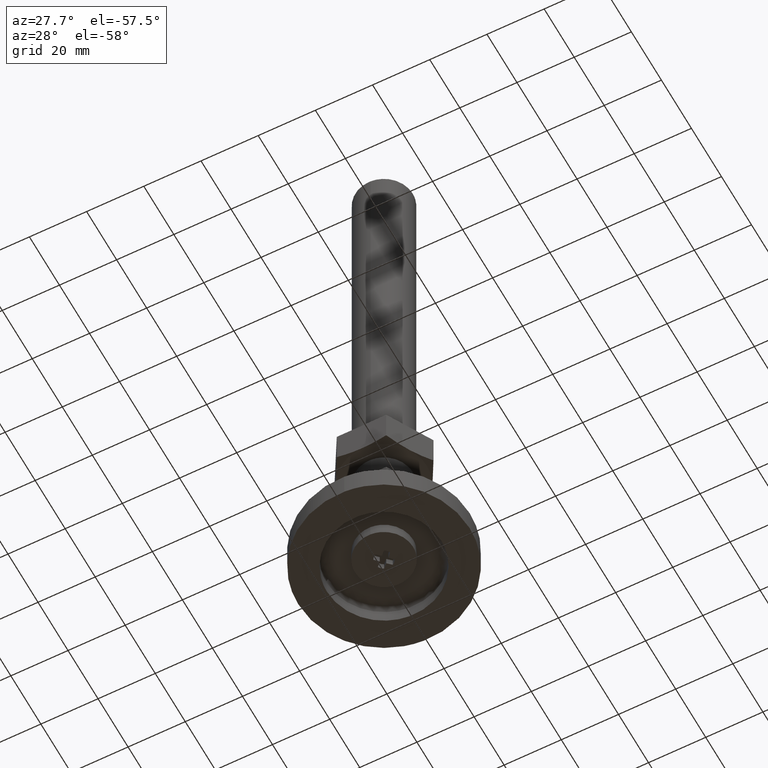
[diagram: clean part render]
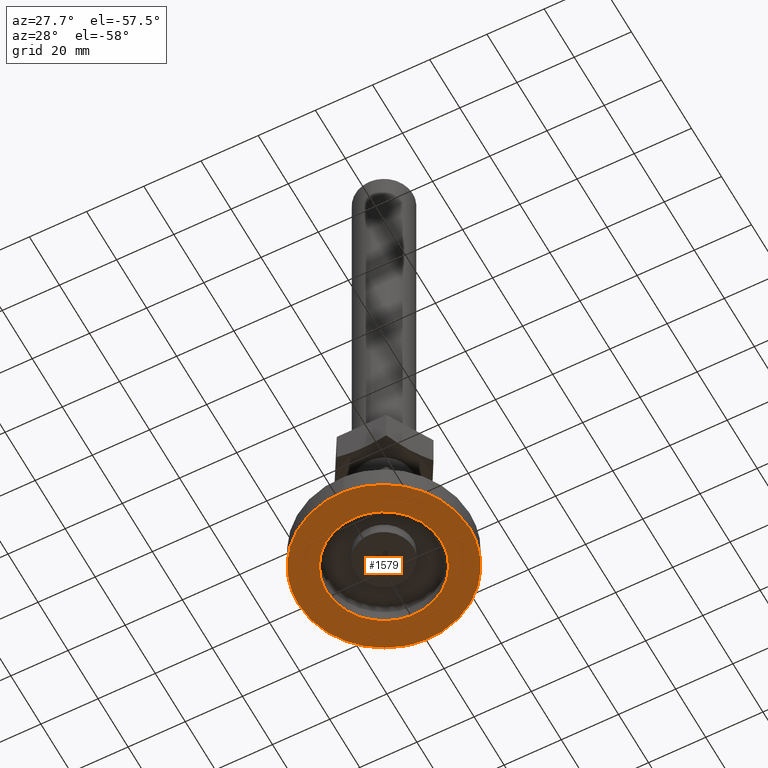
[diagram: same view with one face highlighted and labeled with its STEP entity id]
A machine part, auxiliary view. The second image highlights one B-rep face of the part: STEP entity #1579.
In plain terms, the highlighted face is a freeform B-spline surface patch.
Its self-contained STEP definition (entity closure, byte-faithful):
#1334=CARTESIAN_POINT('',(-1.831456186193486,29.944043952646972,-1.942890E-016));
#1335=VERTEX_POINT('',#1334);
#1343=CARTESIAN_POINT('',(1.831456186193494,-29.944043952646972,-1.942890E-016));
#1344=VERTEX_POINT('',#1343);
#1350=CARTESIAN_POINT('',(30.0,0.0,0.0));
#1351=VERTEX_POINT('',#1350);
#1352=CARTESIAN_POINT('',(30.0,0.0,0.0));
#1353=CARTESIAN_POINT('',(30.0,-28.221182007031295,0.0));
#1354=CARTESIAN_POINT('',(1.831456186193502,-29.944043952646965,0.0));
#1362=(BOUNDED_CURVE()B_SPLINE_CURVE(2,(#1352,#1353,#1354),.UNSPECIFIED.,.F.,.U.)B_SPLINE_CURVE_WITH_KNOTS((3,3),(0.500000000000000,0.739332962241117),.UNSPECIFIED.)CURVE()GEOMETRIC_REPRESENTATION_ITEM()RATIONAL_B_SPLINE_CURVE((1.0,0.719603993284163,0.976072041671377))REPRESENTATION_ITEM(''));
#1363=EDGE_CURVE('',#1351,#1344,#1362,.T.);
#1365=CARTESIAN_POINT('',(-1.831456186193487,29.944043952646972,0.0));
#1366=CARTESIAN_POINT('',(-0.916582899031763,30.000000000000004,0.0));
#1367=CARTESIAN_POINT('',(0.0,30.0,0.0));
#1368=CARTESIAN_POINT('',(29.999999999999993,29.999999999999993,0.0));
#1369=CARTESIAN_POINT('',(30.0,0.0,0.0));
#1377=(BOUNDED_CURVE()B_SPLINE_CURVE(2,(#1365,#1366,#1367,#1368,#1369),.UNSPECIFIED.,.F.,.U.)B_SPLINE_CURVE_WITH_KNOTS((3,2,3),(0.239332962241117,0.250000000000000,0.500000000000000),.UNSPECIFIED.)CURVE()GEOMETRIC_REPRESENTATION_ITEM()RATIONAL_B_SPLINE_CURVE((0.976072041671377,0.987502787902384,1.0,0.707106781186547,1.0))REPRESENTATION_ITEM(''));
#1378=EDGE_CURVE('',#1335,#1351,#1377,.T.);
#1402=CARTESIAN_POINT('',(-30.0,0.0,0.0));
#1403=VERTEX_POINT('',#1402);
#1404=CARTESIAN_POINT('',(-30.0,0.0,0.0));
#1405=CARTESIAN_POINT('',(-30.000000000000004,28.221182007031313,0.0));
#1406=CARTESIAN_POINT('',(-1.831456186193487,29.944043952646972,0.0));
#1414=(BOUNDED_CURVE()B_SPLINE_CURVE(2,(#1404,#1405,#1406),.UNSPECIFIED.,.F.,.U.)B_SPLINE_CURVE_WITH_KNOTS((3,3),(0.0,0.239332962241117),.UNSPECIFIED.)CURVE()GEOMETRIC_REPRESENTATION_ITEM()RATIONAL_B_SPLINE_CURVE((1.0,0.719603993284163,0.976072041671377))REPRESENTATION_ITEM(''));
#1415=EDGE_CURVE('',#1403,#1335,#1414,.T.);
#1417=CARTESIAN_POINT('',(1.831456186193502,-29.944043952646965,0.0));
#1418=CARTESIAN_POINT('',(0.916582899031771,-29.999999999999996,0.0));
#1419=CARTESIAN_POINT('',(0.0,-30.0,0.0));
#1420=CARTESIAN_POINT('',(-29.999999999999993,-29.999999999999993,0.0));
#1421=CARTESIAN_POINT('',(-30.0,0.0,0.0));
#1429=(BOUNDED_CURVE()B_SPLINE_CURVE(2,(#1417,#1418,#1419,#1420,#1421),.UNSPECIFIED.,.F.,.U.)B_SPLINE_CURVE_WITH_KNOTS((3,2,3),(0.739332962241117,0.750000000000000,1.0),.UNSPECIFIED.)CURVE()GEOMETRIC_REPRESENTATION_ITEM()RATIONAL_B_SPLINE_CURVE((0.976072041671377,0.987502787902384,1.0,0.707106781186547,1.0))REPRESENTATION_ITEM(''));
#1430=EDGE_CURVE('',#1344,#1403,#1429,.T.);
#1457=CARTESIAN_POINT('',(-1.569181914649348,19.938346674655278,-8.326673E-017));
#1458=VERTEX_POINT('',#1457);
#1464=CARTESIAN_POINT('',(20.0,0.0,0.0));
#1465=VERTEX_POINT('',#1464);
#1466=CARTESIAN_POINT('',(-1.569181914649347,19.938346674655278,0.0));
#1467=CARTESIAN_POINT('',(-0.785802140199831,20.0,0.0));
#1468=CARTESIAN_POINT('',(0.0,20.0,0.0));
#1469=CARTESIAN_POINT('',(19.999999999999996,19.999999999999996,0.0));
#1470=CARTESIAN_POINT('',(20.0,0.0,0.0));
#1478=(BOUNDED_CURVE()B_SPLINE_CURVE(2,(#1466,#1467,#1468,#1469,#1470),.UNSPECIFIED.,.F.,.U.)B_SPLINE_CURVE_WITH_KNOTS((3,2,3),(0.236331300631972,0.250000000000000,0.500000000000000),.UNSPECIFIED.)CURVE()GEOMETRIC_REPRESENTATION_ITEM()RATIONAL_B_SPLINE_CURVE((0.969723356170157,0.983986122580420,1.0,0.707106781186548,1.0))REPRESENTATION_ITEM(''));
#1479=EDGE_CURVE('',#1458,#1465,#1478,.T.);
#1481=CARTESIAN_POINT('',(1.569181914649349,-19.938346674655278,-8.326673E-017));
#1482=VERTEX_POINT('',#1481);
#1483=CARTESIAN_POINT('',(20.0,0.0,0.0));
#1484=CARTESIAN_POINT('',(20.0,-18.487809833078163,0.0));
#1485=CARTESIAN_POINT('',(1.569181914649347,-19.938346674655278,0.0));
#1493=(BOUNDED_CURVE()B_SPLINE_CURVE(2,(#1483,#1484,#1485),.UNSPECIFIED.,.F.,.U.)B_SPLINE_CURVE_WITH_KNOTS((3,3),(0.500000000000000,0.736331300631972),.UNSPECIFIED.)CURVE()GEOMETRIC_REPRESENTATION_ITEM()RATIONAL_B_SPLINE_CURVE((1.0,0.723120658606128,0.969723356170157))REPRESENTATION_ITEM(''));
#1494=EDGE_CURVE('',#1465,#1482,#1493,.T.);
#1528=CARTESIAN_POINT('',(-20.0,0.0,0.0));
#1529=VERTEX_POINT('',#1528);
#1530=CARTESIAN_POINT('',(1.569181914649347,-19.938346674655278,0.0));
#1531=CARTESIAN_POINT('',(0.785802140199831,-20.0,0.0));
#1532=CARTESIAN_POINT('',(0.0,-20.0,0.0));
#1533=CARTESIAN_POINT('',(-19.999999999999996,-19.999999999999996,0.0));
#1534=CARTESIAN_POINT('',(-20.0,0.0,0.0));
#1542=(BOUNDED_CURVE()B_SPLINE_CURVE(2,(#1530,#1531,#1532,#1533,#1534),.UNSPECIFIED.,.F.,.U.)B_SPLINE_CURVE_WITH_KNOTS((3,2,3),(0.736331300631972,0.750000000000000,1.0),.UNSPECIFIED.)CURVE()GEOMETRIC_REPRESENTATION_ITEM()RATIONAL_B_SPLINE_CURVE((0.969723356170157,0.983986122580420,1.0,0.707106781186548,1.0))REPRESENTATION_ITEM(''));
#1543=EDGE_CURVE('',#1482,#1529,#1542,.T.);
#1545=CARTESIAN_POINT('',(-20.0,0.0,0.0));
#1546=CARTESIAN_POINT('',(-20.0,18.487809833078163,0.0));
#1547=CARTESIAN_POINT('',(-1.569181914649347,19.938346674655278,0.0));
#1555=(BOUNDED_CURVE()B_SPLINE_CURVE(2,(#1545,#1546,#1547),.UNSPECIFIED.,.F.,.U.)B_SPLINE_CURVE_WITH_KNOTS((3,3),(0.0,0.236331300631972),.UNSPECIFIED.)CURVE()GEOMETRIC_REPRESENTATION_ITEM()RATIONAL_B_SPLINE_CURVE((1.0,0.723120658606128,0.969723356170157))REPRESENTATION_ITEM(''));
#1556=EDGE_CURVE('',#1529,#1458,#1555,.T.);
#1562=CARTESIAN_POINT('',(-32.996999883708362,-32.996261619275693,0.0));
#1563=CARTESIAN_POINT('',(32.997001493033771,-32.996261619275693,0.0));
#1564=CARTESIAN_POINT('',(-32.996999883708362,32.996260546392072,0.0));
#1565=CARTESIAN_POINT('',(32.997001493033771,32.996260546392072,0.0));
#1566=B_SPLINE_SURFACE_WITH_KNOTS('',1,1,((#1562,#1564),(#1563,#1565)),.UNSPECIFIED.,.F.,.F.,.U.,(2,2),(2,2),(0.0,65.994001376742119),(0.0,65.992522165667751),.UNSPECIFIED.);
#1567=ORIENTED_EDGE('',*,*,#1415,.T.);
#1568=ORIENTED_EDGE('',*,*,#1378,.T.);
#1569=ORIENTED_EDGE('',*,*,#1363,.T.);
#1570=ORIENTED_EDGE('',*,*,#1430,.T.);
#1571=EDGE_LOOP('',(#1567,#1568,#1569,#1570));
#1572=FACE_OUTER_BOUND('',#1571,.T.);
#1573=ORIENTED_EDGE('',*,*,#1494,.F.);
#1574=ORIENTED_EDGE('',*,*,#1479,.F.);
#1575=ORIENTED_EDGE('',*,*,#1556,.F.);
#1576=ORIENTED_EDGE('',*,*,#1543,.F.);
#1577=EDGE_LOOP('',(#1573,#1574,#1575,#1576));
#1578=FACE_BOUND('',#1577,.T.);
#1579=ADVANCED_FACE('',(#1572,#1578),#1566,.F.);